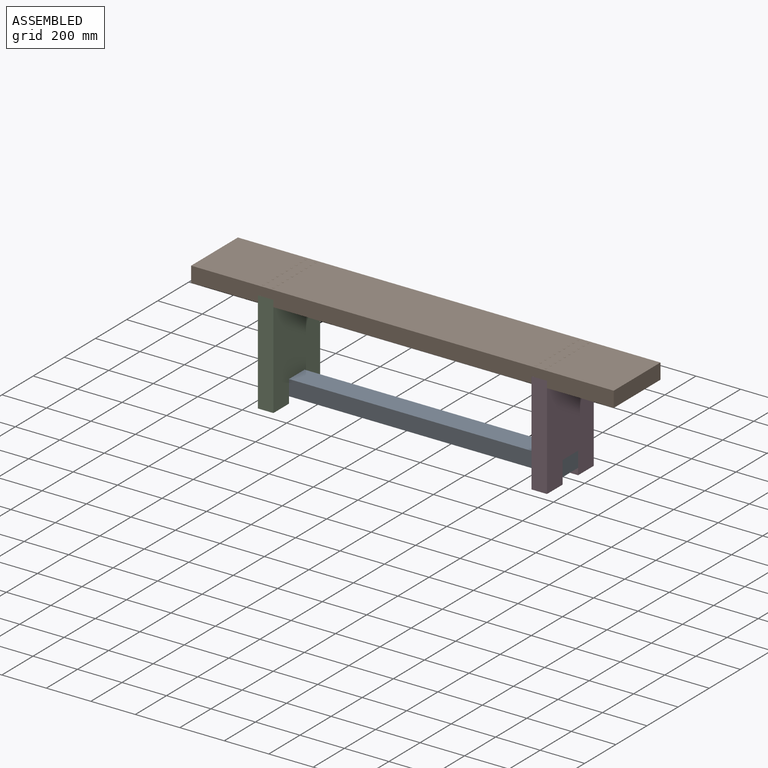
[diagram: assembled view]
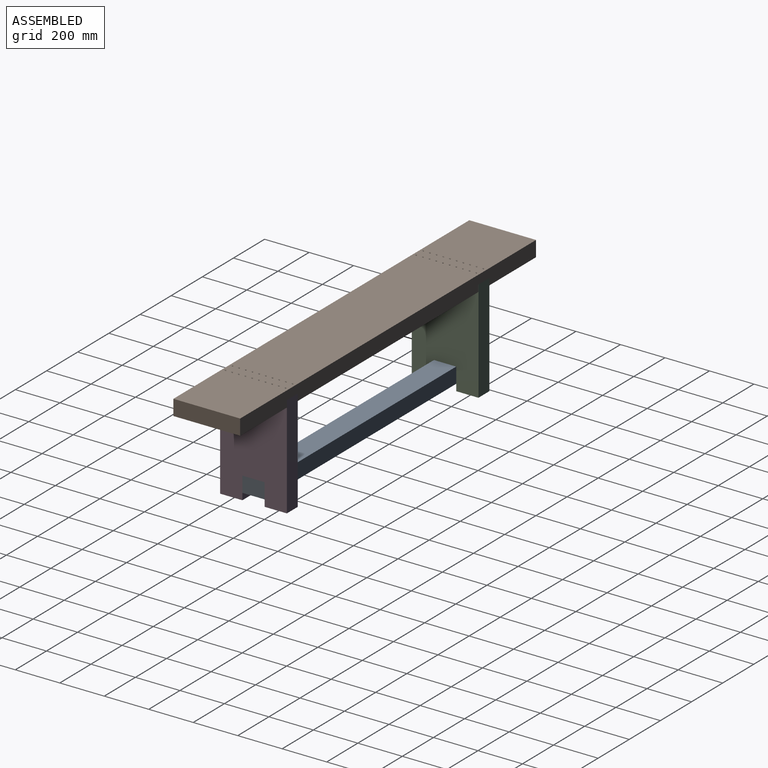
[diagram: assembled view, second angle]
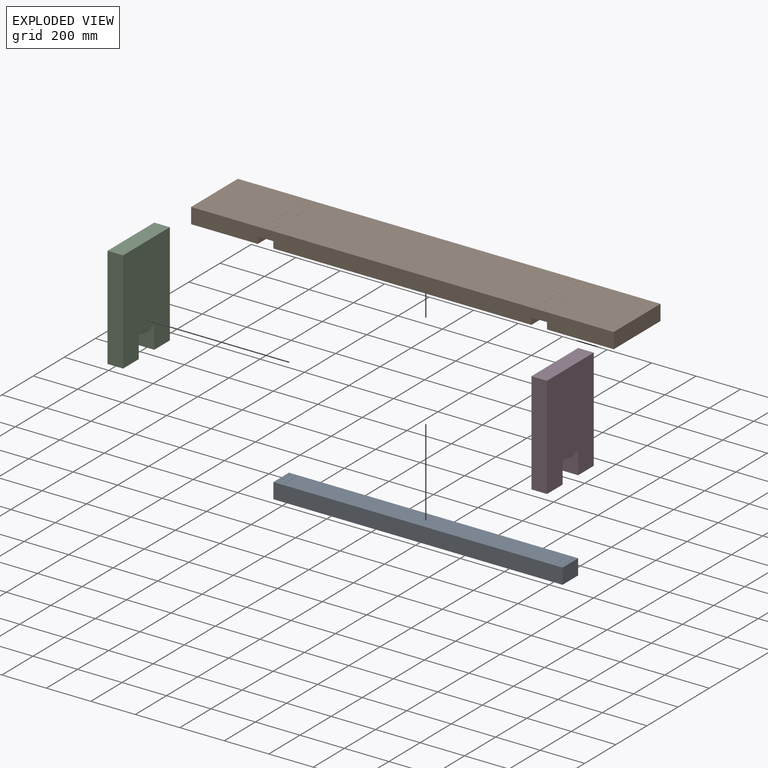
[diagram: exploded view]
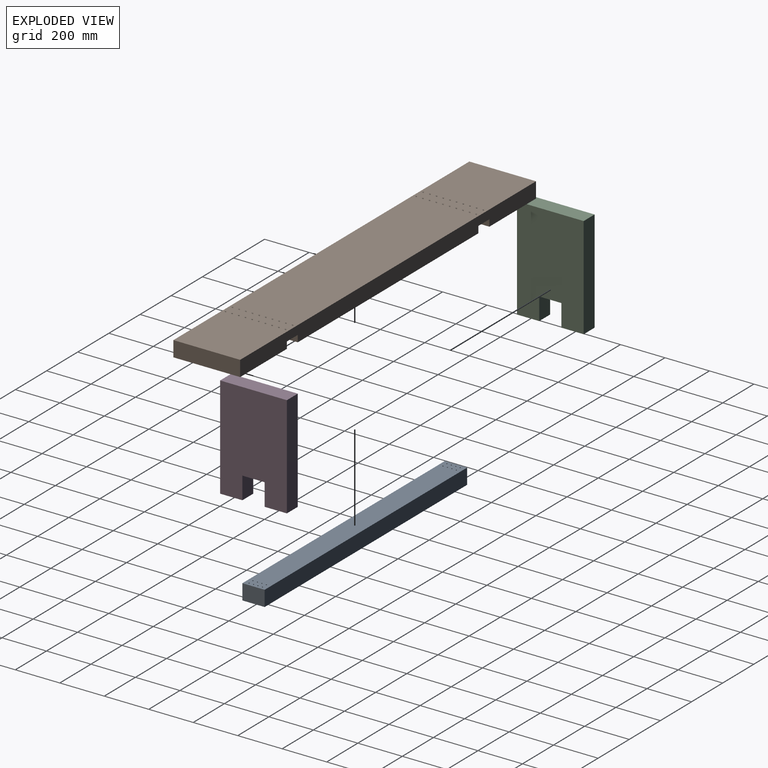
[diagram: exploded view, second angle]
ASSEMBLY  parts=4 mates=3
PART A: 38 faces, bbox 1300x100x70 mm
  f0: plane 1300x100mm, normal (0,0,-1), area 128743.4mm2, adj f1,f3,f4,f5,f7,f9,f11,f13
  f1: plane 1300x70mm, normal (0,1,0), area 91000mm2, adj f0,f2,f4,f5
  f2: plane 1300x100mm, normal (0,0,1), area 129685.8mm2, adj f1,f3,f4,f5,f6,f8,f10,f12
  f3: plane 1300x70mm, normal (0,-1,0), area 91000mm2, adj f0,f2,f4,f5
  f4: plane 100x70mm, normal (1,0,0), area 7000mm2, adj f0,f1,f2,f3
  f5: plane 100x70mm, normal (-1,0,0), area 7000mm2, adj f0,f1,f2,f3
  f6: cylinder r=2.5mm len=67.5mm, axis (0,0,-1), area 1060.3mm2, adj f2,f7
  f7: cone r=2.5mm half-angle=45deg, axis (0,0,-1), area 83.3mm2, adj f0,f6
  f8: cylinder r=2.5mm len=67.5mm, axis (0,0,-1), area 1060.3mm2, adj f2,f9
  f9: cone r=2.5mm half-angle=45deg, axis (0,0,-1), area 83.3mm2, adj f0,f8
  f10: cylinder r=2.5mm len=67.5mm, axis (0,0,-1), area 1060.3mm2, adj f2,f11
  f11: cone r=2.5mm half-angle=45deg, axis (0,0,-1), area 83.3mm2, adj f0,f10
  f12: cylinder r=2.5mm len=67.5mm, axis (0,0,-1), area 1060.3mm2, adj f2,f13
  f13: cone r=2.5mm half-angle=45deg, axis (0,0,-1), area 83.3mm2, adj f0,f12
  f14: cylinder r=2.5mm len=67.5mm, axis (0,0,-1), area 1060.3mm2, adj f2,f15
  f15: cone r=2.5mm half-angle=45deg, axis (0,0,-1), area 83.3mm2, adj f0,f14
  f16: cylinder r=2.5mm len=67.5mm, axis (0,0,-1), area 1060.3mm2, adj f2,f17
  f17: cone r=2.5mm half-angle=45deg, axis (0,0,-1), area 83.3mm2, adj f0,f16
  f18: cylinder r=2.5mm len=67.5mm, axis (0,0,-1), area 1060.3mm2, adj f2,f19
  f19: cone r=2.5mm half-angle=45deg, axis (0,0,-1), area 83.3mm2, adj f0,f18
  f20: cylinder r=2.5mm len=67.5mm, axis (0,0,-1), area 1060.3mm2, adj f2,f21
  f21: cone r=2.5mm half-angle=45deg, axis (0,0,-1), area 83.3mm2, adj f0,f20
  f22: cylinder r=2.5mm len=67.5mm, axis (0,0,-1), area 1060.3mm2, adj f2,f23
  f23: cone r=2.5mm half-angle=45deg, axis (0,0,-1), area 83.3mm2, adj f0,f22
  f24: cylinder r=2.5mm len=67.5mm, axis (0,0,-1), area 1060.3mm2, adj f2,f25
  f25: cone r=2.5mm half-angle=45deg, axis (0,0,-1), area 83.3mm2, adj f0,f24
  f26: cylinder r=2.5mm len=67.5mm, axis (0,0,-1), area 1060.3mm2, adj f2,f27
  f27: cone r=2.5mm half-angle=45deg, axis (0,0,-1), area 83.3mm2, adj f0,f26
  f28: cylinder r=2.5mm len=67.5mm, axis (0,0,-1), area 1060.3mm2, adj f2,f29
  f29: cone r=2.5mm half-angle=45deg, axis (0,0,-1), area 83.3mm2, adj f0,f28
  f30: cylinder r=2.5mm len=67.5mm, axis (0,0,-1), area 1060.3mm2, adj f2,f31
  f31: cone r=2.5mm half-angle=45deg, axis (0,0,-1), area 83.3mm2, adj f0,f30
  f32: cylinder r=2.5mm len=67.5mm, axis (0,0,-1), area 1060.3mm2, adj f2,f33
  f33: cone r=2.5mm half-angle=45deg, axis (0,0,-1), area 83.3mm2, adj f0,f32
  f34: cylinder r=2.5mm len=67.5mm, axis (0,0,-1), area 1060.3mm2, adj f2,f35
  f35: cone r=2.5mm half-angle=45deg, axis (0,0,-1), area 83.3mm2, adj f0,f34
  f36: cylinder r=2.5mm len=67.5mm, axis (0,0,-1), area 1060.3mm2, adj f2,f37
  f37: cone r=2.5mm half-angle=45deg, axis (0,0,-1), area 83.3mm2, adj f0,f36
PART B: 94 faces, bbox 1900x300x70 mm
  f0: plane 300x300mm, normal (0,0,-1), area 90000mm2, adj f2,f4,f5,f11
  f1: plane 1160x300mm, normal (0,0,-1), area 348000mm2, adj f2,f4,f8,f12
  f2: plane 1900x70mm, normal (0,-1,0), area 128800mm2, adj f0,f1,f3,f5,f6,f7,f8,f9
  f3: plane 300x70mm, normal (1,0,0), area 21000mm2, adj f2,f4,f6,f7
  f4: plane 1900x70mm, normal (0,1,0), area 128800mm2, adj f0,f1,f3,f5,f6,f7,f8,f9
  f5: plane 300x70mm, normal (-1,0,0), area 21000mm2, adj f0,f2,f4,f6
  f6: plane 1900x300mm, normal (0,0,1), area 566858.4mm2, adj f2,f3,f4,f5,f15,f17,f19,f21
  f7: plane 300x300mm, normal (0,0,-1), area 90000mm2, adj f2,f3,f4,f9
  f8: plane 300x30mm, normal (1,0,0), area 9000mm2, adj f1,f2,f4,f10
  f9: plane 300x30mm, normal (-1,0,0), area 9000mm2, adj f2,f4,f7,f10
  f10: plane 300x70mm, normal (0,0,-1), area 20607.3mm2, adj f2,f4,f8,f9,f54,f56,f58,f60
  f11: plane 300x30mm, normal (1,0,0), area 9000mm2, adj f0,f2,f4,f13
  f12: plane 300x30mm, normal (-1,0,0), area 9000mm2, adj f1,f2,f4,f13
  f13: plane 300x70mm, normal (0,0,-1), area 20607.3mm2, adj f2,f4,f11,f12,f14,f16,f18,f20
  f14: cylinder r=2.5mm len=37.5mm, axis (0,0,1), area 589mm2, adj f13,f15
  f15: cone r=2.5mm half-angle=45deg, axis (0,0,1), area 83.3mm2, adj f6,f14
  f16: cylinder r=2.5mm len=37.5mm, axis (0,0,1), area 589mm2, adj f13,f17
  f17: cone r=2.5mm half-angle=45deg, axis (0,0,1), area 83.3mm2, adj f6,f16
  f18: cylinder r=2.5mm len=37.5mm, axis (0,0,1), area 589mm2, adj f13,f19
  f19: cone r=2.5mm half-angle=45deg, axis (0,0,1), area 83.3mm2, adj f6,f18
  f20: cylinder r=2.5mm len=37.5mm, axis (0,0,1), area 589mm2, adj f13,f21
  f21: cone r=2.5mm half-angle=45deg, axis (0,0,1), area 83.3mm2, adj f6,f20
  f22: cylinder r=2.5mm len=37.5mm, axis (0,0,1), area 589mm2, adj f13,f23
  f23: cone r=2.5mm half-angle=45deg, axis (0,0,1), area 83.3mm2, adj f6,f22
  f24: cylinder r=2.5mm len=37.5mm, axis (0,0,1), area 589mm2, adj f13,f25
  f25: cone r=2.5mm half-angle=45deg, axis (0,0,1), area 83.3mm2, adj f6,f24
  f26: cylinder r=2.5mm len=37.5mm, axis (0,0,1), area 589mm2, adj f13,f27
  f27: cone r=2.5mm half-angle=45deg, axis (0,0,1), area 83.3mm2, adj f6,f26
  f28: cylinder r=2.5mm len=37.5mm, axis (0,0,1), area 589mm2, adj f13,f29
  f29: cone r=2.5mm half-angle=45deg, axis (0,0,1), area 83.3mm2, adj f6,f28
  f30: cylinder r=2.5mm len=37.5mm, axis (0,0,1), area 589mm2, adj f13,f31
  f31: cone r=2.5mm half-angle=45deg, axis (0,0,1), area 83.3mm2, adj f6,f30
  f32: cylinder r=2.5mm len=37.5mm, axis (0,0,1), area 589mm2, adj f13,f33
  f33: cone r=2.5mm half-angle=45deg, axis (0,0,1), area 83.3mm2, adj f6,f32
  f34: cylinder r=2.5mm len=37.5mm, axis (0,0,1), area 589mm2, adj f13,f35
  f35: cone r=2.5mm half-angle=45deg, axis (0,0,1), area 83.3mm2, adj f6,f34
  f36: cylinder r=2.5mm len=37.5mm, axis (0,0,1), area 589mm2, adj f13,f37
  f37: cone r=2.5mm half-angle=45deg, axis (0,0,1), area 83.3mm2, adj f6,f36
  f38: cylinder r=2.5mm len=37.5mm, axis (0,0,1), area 589mm2, adj f13,f39
  f39: cone r=2.5mm half-angle=45deg, axis (0,0,1), area 83.3mm2, adj f6,f38
  f40: cylinder r=2.5mm len=37.5mm, axis (0,0,1), area 589mm2, adj f13,f41
  f41: cone r=2.5mm half-angle=45deg, axis (0,0,1), area 83.3mm2, adj f6,f40
  f42: cylinder r=2.5mm len=37.5mm, axis (0,0,1), area 589mm2, adj f13,f43
  f43: cone r=2.5mm half-angle=45deg, axis (0,0,1), area 83.3mm2, adj f6,f42
  f44: cylinder r=2.5mm len=37.5mm, axis (0,0,1), area 589mm2, adj f13,f45
  f45: cone r=2.5mm half-angle=45deg, axis (0,0,1), area 83.3mm2, adj f6,f44
  f46: cylinder r=2.5mm len=37.5mm, axis (0,0,1), area 589mm2, adj f13,f47
  f47: cone r=2.5mm half-angle=45deg, axis (0,0,1), area 83.3mm2, adj f6,f46
  f48: cylinder r=2.5mm len=37.5mm, axis (0,0,1), area 589mm2, adj f13,f49
  f49: cone r=2.5mm half-angle=45deg, axis (0,0,1), area 83.3mm2, adj f6,f48
  f50: cylinder r=2.5mm len=37.5mm, axis (0,0,1), area 589mm2, adj f13,f51
  f51: cone r=2.5mm half-angle=45deg, axis (0,0,1), area 83.3mm2, adj f6,f50
  f52: cylinder r=2.5mm len=37.5mm, axis (0,0,1), area 589mm2, adj f13,f53
  f53: cone r=2.5mm half-angle=45deg, axis (0,0,1), area 83.3mm2, adj f6,f52
  f54: cylinder r=2.5mm len=37.5mm, axis (0,0,1), area 589mm2, adj f10,f55
  f55: cone r=2.5mm half-angle=45deg, axis (0,0,1), area 83.3mm2, adj f6,f54
  f56: cylinder r=2.5mm len=37.5mm, axis (0,0,1), area 589mm2, adj f10,f57
  f57: cone r=2.5mm half-angle=45deg, axis (0,0,1), area 83.3mm2, adj f6,f56
  f58: cylinder r=2.5mm len=37.5mm, axis (0,0,1), area 589mm2, adj f10,f59
  f59: cone r=2.5mm half-angle=45deg, axis (0,0,1), area 83.3mm2, adj f6,f58
  f60: cylinder r=2.5mm len=37.5mm, axis (0,0,1), area 589mm2, adj f10,f61
  f61: cone r=2.5mm half-angle=45deg, axis (0,0,1), area 83.3mm2, adj f6,f60
  f62: cylinder r=2.5mm len=37.5mm, axis (0,0,1), area 589mm2, adj f10,f63
  f63: cone r=2.5mm half-angle=45deg, axis (0,0,1), area 83.3mm2, adj f6,f62
  f64: cylinder r=2.5mm len=37.5mm, axis (0,0,1), area 589mm2, adj f10,f65
  f65: cone r=2.5mm half-angle=45deg, axis (0,0,1), area 83.3mm2, adj f6,f64
  f66: cylinder r=2.5mm len=37.5mm, axis (0,0,1), area 589mm2, adj f10,f67
  f67: cone r=2.5mm half-angle=45deg, axis (0,0,1), area 83.3mm2, adj f6,f66
  f68: cylinder r=2.5mm len=37.5mm, axis (0,0,1), area 589mm2, adj f10,f69
  f69: cone r=2.5mm half-angle=45deg, axis (0,0,1), area 83.3mm2, adj f6,f68
  f70: cylinder r=2.5mm len=37.5mm, axis (0,0,1), area 589mm2, adj f10,f71
  f71: cone r=2.5mm half-angle=45deg, axis (0,0,1), area 83.3mm2, adj f6,f70
  f72: cylinder r=2.5mm len=37.5mm, axis (0,0,1), area 589mm2, adj f10,f73
  f73: cone r=2.5mm half-angle=45deg, axis (0,0,1), area 83.3mm2, adj f6,f72
  f74: cylinder r=2.5mm len=37.5mm, axis (0,0,1), area 589mm2, adj f10,f75
  f75: cone r=2.5mm half-angle=45deg, axis (0,0,1), area 83.3mm2, adj f6,f74
  f76: cylinder r=2.5mm len=37.5mm, axis (0,0,1), area 589mm2, adj f10,f77
  f77: cone r=2.5mm half-angle=45deg, axis (0,0,1), area 83.3mm2, adj f6,f76
  f78: cylinder r=2.5mm len=37.5mm, axis (0,0,1), area 589mm2, adj f10,f79
  f79: cone r=2.5mm half-angle=45deg, axis (0,0,1), area 83.3mm2, adj f6,f78
  f80: cylinder r=2.5mm len=37.5mm, axis (0,0,1), area 589mm2, adj f10,f81
  f81: cone r=2.5mm half-angle=45deg, axis (0,0,1), area 83.3mm2, adj f6,f80
  f82: cylinder r=2.5mm len=37.5mm, axis (0,0,1), area 589mm2, adj f10,f83
  f83: cone r=2.5mm half-angle=45deg, axis (0,0,1), area 83.3mm2, adj f6,f82
  f84: cylinder r=2.5mm len=37.5mm, axis (0,0,1), area 589mm2, adj f10,f85
  f85: cone r=2.5mm half-angle=45deg, axis (0,0,1), area 83.3mm2, adj f6,f84
  f86: cylinder r=2.5mm len=37.5mm, axis (0,0,1), area 589mm2, adj f10,f87
  f87: cone r=2.5mm half-angle=45deg, axis (0,0,1), area 83.3mm2, adj f6,f86
  f88: cylinder r=2.5mm len=37.5mm, axis (0,0,1), area 589mm2, adj f10,f89
  f89: cone r=2.5mm half-angle=45deg, axis (0,0,1), area 83.3mm2, adj f6,f88
  f90: cylinder r=2.5mm len=37.5mm, axis (0,0,1), area 589mm2, adj f10,f91
  f91: cone r=2.5mm half-angle=45deg, axis (0,0,1), area 83.3mm2, adj f6,f90
  f92: cylinder r=2.5mm len=37.5mm, axis (0,0,1), area 589mm2, adj f10,f93
  f93: cone r=2.5mm half-angle=45deg, axis (0,0,1), area 83.3mm2, adj f6,f92
PART C: 10 faces, bbox 70x300x460 mm
  f0: plane 100x70mm, normal (0,0,-1), area 7000mm2, adj f1,f3,f6,f8
  f1: plane 460x300mm, normal (1,0,0), area 128000mm2, adj f0,f2,f3,f4,f5,f7,f8,f9
  f2: plane 100x70mm, normal (0,0,-1), area 7000mm2, adj f1,f5,f6,f7
  f3: plane 460x70mm, normal (0,1,0), area 32200mm2, adj f0,f1,f4,f6
  f4: plane 300x70mm, normal (0,0,1), area 21000mm2, adj f1,f3,f5,f6
  f5: plane 460x70mm, normal (0,-1,0), area 32200mm2, adj f1,f2,f4,f6
  f6: plane 460x300mm, normal (-1,0,0), area 128000mm2, adj f0,f2,f3,f4,f5,f7,f8,f9
  f7: plane 100x70mm, normal (0,1,0), area 7000mm2, adj f1,f2,f6,f9
  f8: plane 100x70mm, normal (0,-1,0), area 7000mm2, adj f0,f1,f6,f9
  f9: plane 100x70mm, normal (0,0,-1), area 7000mm2, adj f1,f6,f7,f8
PART D: same geometry as C
PLACE A t=(-622.23,-174.59,-480.2)mm
PLACE B t=(27.81,-174.59,-115.2)mm
PLACE C t=(-622.23,-174.59,-315.2)mm
PLACE D t=(607.86,-174.59,-315.2)mm
MATE fastened B.f13 <-> C.f4  axis (0,0,-1) through (-587.23,-174.59,-85.2)mm
MATE fastened C.f9 <-> A.f2  axis (0,0,-1) through (-622.23,-174.59,-445.2)mm
MATE fastened D.f4 <-> B.f10  axis (0,0,1) through (642.86,-174.59,-85.2)mm
